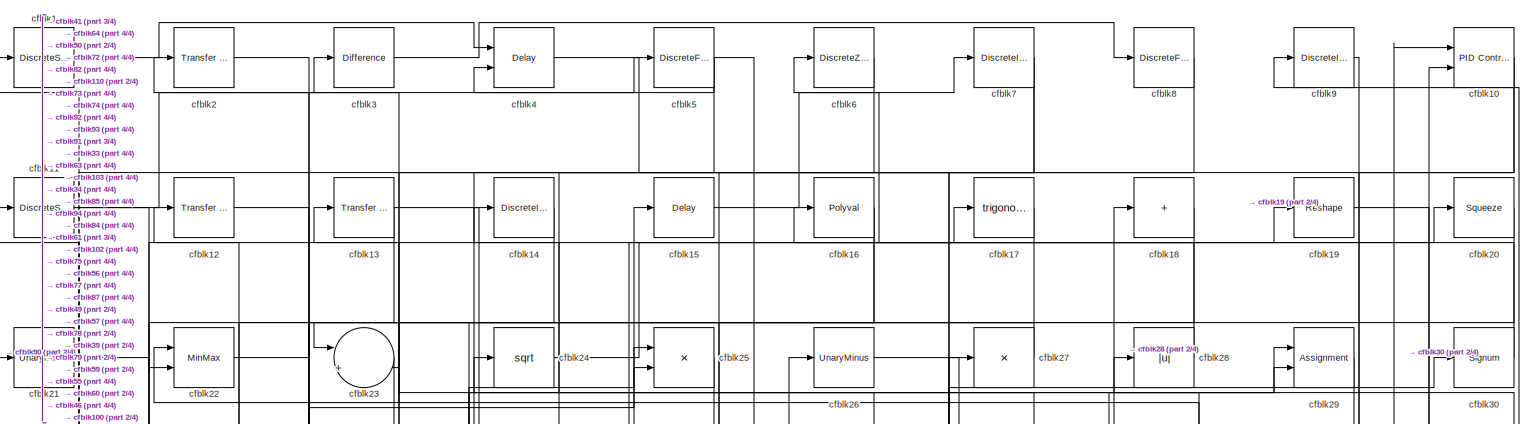
[diagram: root canvas - part 1/4, full width, top band]
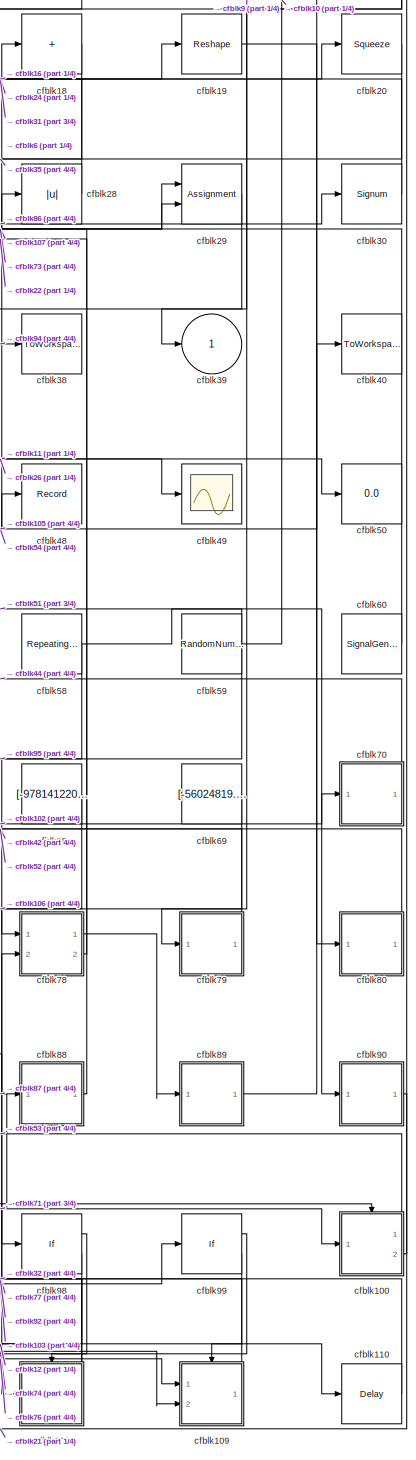
[diagram: root canvas - part 2/4, right side, full height]
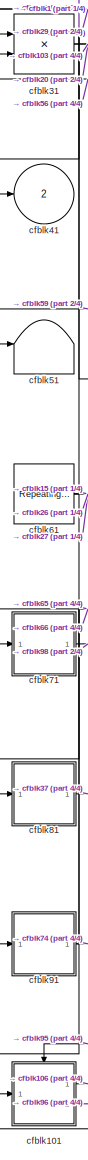
[diagram: root canvas - part 3/4, middle left region]
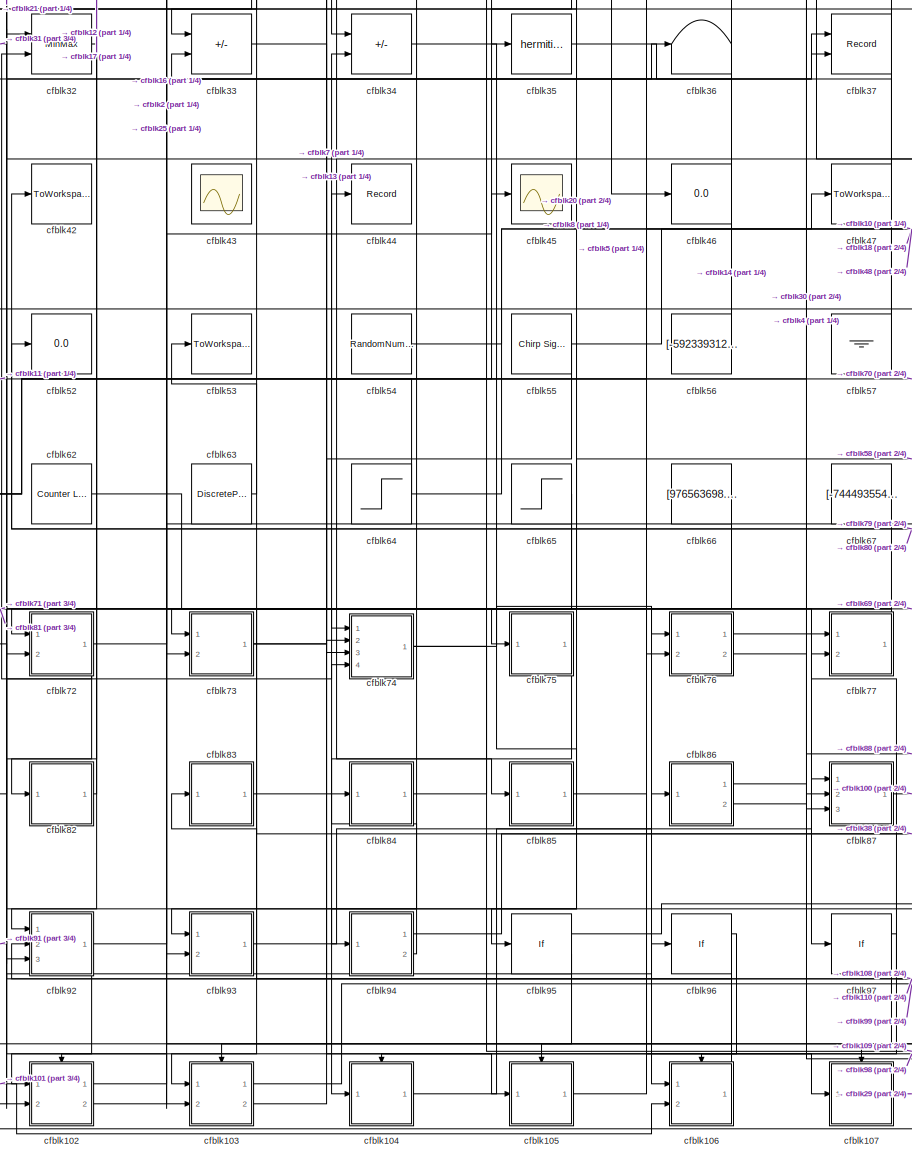
[diagram: root canvas - part 4/4, central region]
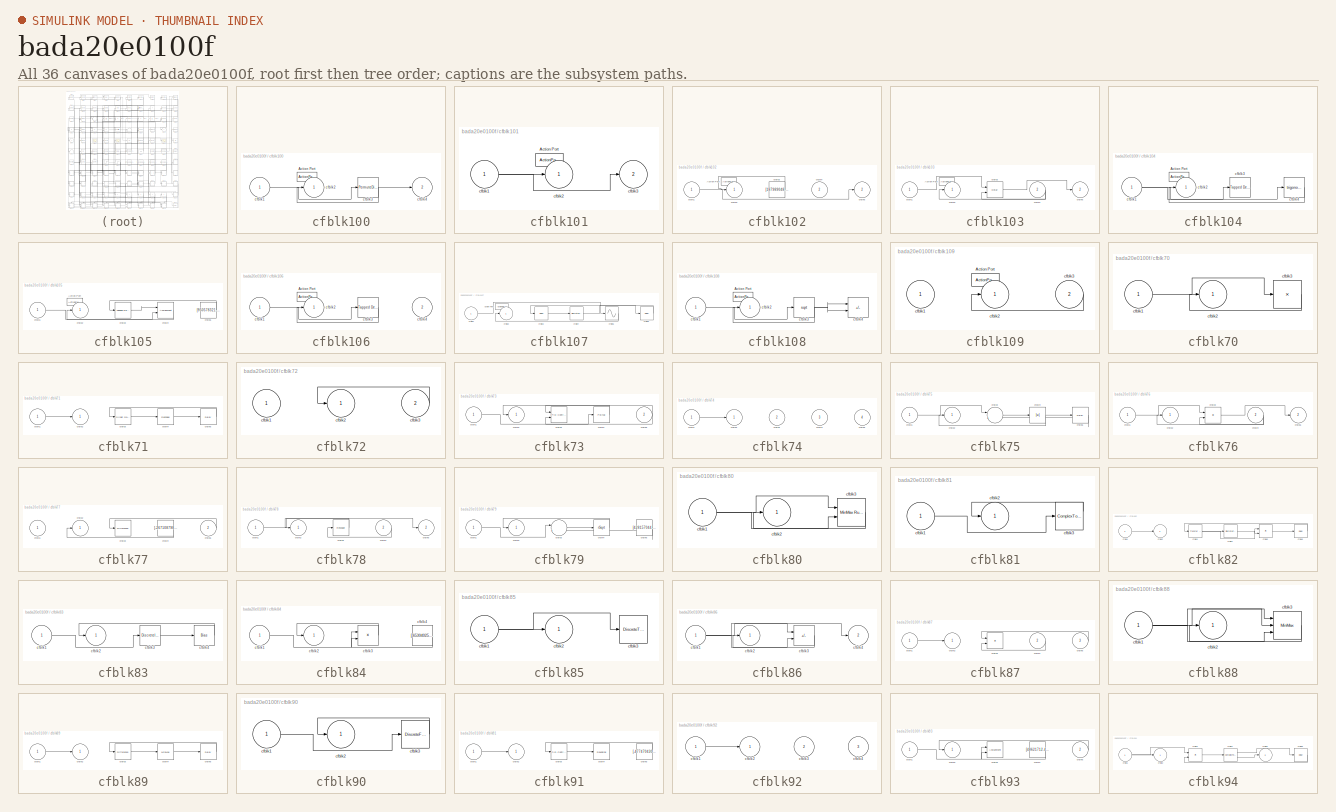
[diagram: thumbnail index - all 36 canvases of the model, root first then tree order]
MODEL slx_bada20e0100f
KIND model
CONFIG AbsTol = auto
CONFIG EnableMultiTasking = off
CONFIG FixedStep = auto
CONFIG MaxStep = auto
CONFIG MinStep = auto
CONFIG RelTol = 1e-3
CONFIG SampleTimeConstraint = Unconstrained
CONFIG SolverName = VariableStepAuto
CONFIG StartTime = 0.0
CONFIG StopTime = 10.0
BLOCK [DiscreteStateSpace] cfblk1
BLOCK [Reference] cfblk10  REF=slpidlib/PID Controller (2DOF)
  Ports = [2, 1]
  SourceBlock = slpidlib/PID Controller (2DOF)
  SourceProductBaseCode = SL
  SourceType = PID 2dof
BLOCK [SubSystem] cfblk100
  Ports = [1, 2, 0, 0, 0, 0, 0, 1]
  RequestExecContextInheritance = off
  TreatAsAtomicUnit = on
BLOCK [ActionPort] cfblk100/Action Port
  ActionPortLabel = if(u1 >= 0)
BLOCK [Inport] cfblk100/cfblk1
BLOCK [Outport] cfblk100/cfblk2
BLOCK [PermuteDimensions] cfblk100/cfblk3
BLOCK [Outport] cfblk100/cfblk4
  Port = 2
BLOCK [SubSystem] cfblk101
  Ports = [1, 2, 0, 0, 0, 0, 0, 1]
  RequestExecContextInheritance = off
  TreatAsAtomicUnit = on
BLOCK [ActionPort] cfblk101/Action Port
  ActionPortLabel = else
BLOCK [Inport] cfblk101/cfblk1
BLOCK [Outport] cfblk101/cfblk2
BLOCK [Outport] cfblk101/cfblk3
  Port = 2
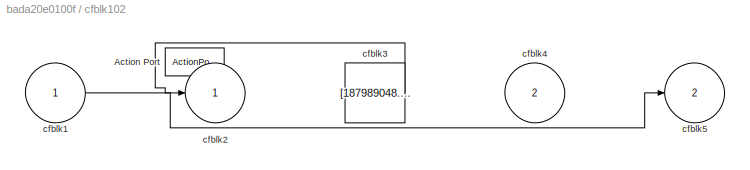
BLOCK [SubSystem] cfblk102
  Ports = [2, 2, 0, 0, 0, 0, 0, 1]
  RequestExecContextInheritance = off
  TreatAsAtomicUnit = on
BLOCK [ActionPort] cfblk102/Action Port
  ActionPortLabel = if(u1 >= 0)
BLOCK [Inport] cfblk102/cfblk1
BLOCK [Outport] cfblk102/cfblk2
BLOCK [Constant] cfblk102/cfblk3
  SampleTime = 1
  Value = [187989048.411279]
BLOCK [Inport] cfblk102/cfblk4
  Port = 2
BLOCK [Outport] cfblk102/cfblk5
  Port = 2
BLOCK [SubSystem] cfblk103
  Ports = [2, 2, 0, 0, 0, 0, 0, 1]
  RequestExecContextInheritance = off
  TreatAsAtomicUnit = on
BLOCK [ActionPort] cfblk103/Action Port
  ActionPortLabel = else
BLOCK [Inport] cfblk103/cfblk1
BLOCK [Outport] cfblk103/cfblk2
BLOCK [Delay] cfblk103/cfblk3
  DelayLengthSource = Input port
  InputPortMap = u0,p1
  Ports = [2, 1]
BLOCK [Inport] cfblk103/cfblk4
  Port = 2
BLOCK [Outport] cfblk103/cfblk5
  Port = 2
BLOCK [SubSystem] cfblk104
  Ports = [1, 1, 0, 0, 0, 0, 0, 1]
  RequestExecContextInheritance = off
  TreatAsAtomicUnit = on
BLOCK [ActionPort] cfblk104/Action Port
  ActionPortLabel = if(u1 >= 0)
BLOCK [Inport] cfblk104/cfblk1
BLOCK [Outport] cfblk104/cfblk2
BLOCK [Reference] cfblk104/cfblk3  REF=simulink/Discrete/Tapped Delay
  Ports = [1, 1]
  SourceBlock = simulink/Discrete/Tapped Delay
  SourceProductBaseCode = SL
  SourceType = Tapped Delay Line
BLOCK [Trigonometry] cfblk104/cfblk4
  Ports = [1, 1]
BLOCK [SubSystem] cfblk105
  Ports = [1, 1, 0, 0, 0, 0, 0, 1]
  RequestExecContextInheritance = off
  TreatAsAtomicUnit = on
BLOCK [ActionPort] cfblk105/Action Port
  ActionPortLabel = else
BLOCK [Inport] cfblk105/cfblk1
BLOCK [Outport] cfblk105/cfblk2
BLOCK [Reference] cfblk105/cfblk3  REF=simulink/Discrete/Tapped Delay
  Ports = [1, 1]
  SourceBlock = simulink/Discrete/Tapped Delay
  SourceProductBaseCode = SL
  SourceType = Tapped Delay Line
BLOCK [Assignment] cfblk105/cfblk4
  DiagnosticForDimensions = Warning
  IndexOptions = Index vector (dialog)
  Indices = 1
  OutputSizes = 1
  Ports = [2, 1]
BLOCK [Constant] cfblk105/cfblk5
  SampleTime = 1
  Value = [950578321.540777]
BLOCK [SubSystem] cfblk106
  Ports = [2, 1, 0, 0, 0, 0, 0, 1]
  RequestExecContextInheritance = off
  TreatAsAtomicUnit = on
BLOCK [ActionPort] cfblk106/Action Port
  ActionPortLabel = if(u1 >= 0)
BLOCK [Inport] cfblk106/cfblk1
BLOCK [Outport] cfblk106/cfblk2
BLOCK [Reference] cfblk106/cfblk3  REF=simulink/Discrete/Tapped Delay
  Ports = [1, 1]
  SourceBlock = simulink/Discrete/Tapped Delay
  SourceProductBaseCode = SL
  SourceType = Tapped Delay Line
BLOCK [Inport] cfblk106/cfblk4
  Port = 2
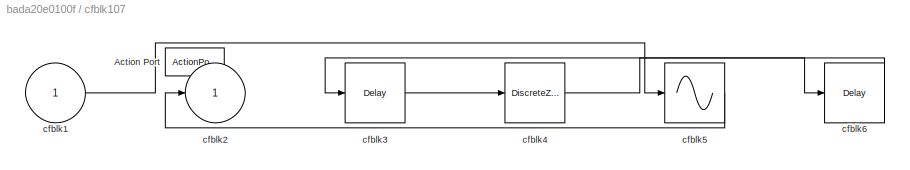
BLOCK [SubSystem] cfblk107
  Ports = [1, 1, 0, 0, 0, 0, 0, 1]
  RequestExecContextInheritance = off
  TreatAsAtomicUnit = on
BLOCK [ActionPort] cfblk107/Action Port
  ActionPortLabel = else
BLOCK [Inport] cfblk107/cfblk1
BLOCK [Outport] cfblk107/cfblk2
BLOCK [Delay] cfblk107/cfblk3
  InputPortMap = u0
  Ports = [1, 1]
BLOCK [DiscreteZeroPole] cfblk107/cfblk4
  Gain = 1
  Poles = [0 0.5]
  SampleTime = -1
BLOCK [Sin] cfblk107/cfblk5
  Ports = [1, 1]
  SampleTime = 0
  TimeSource = Use external signal
BLOCK [Delay] cfblk107/cfblk6
  InputPortMap = u0
  Ports = [1, 1]
BLOCK [SubSystem] cfblk108
  Ports = [1, 1, 0, 0, 0, 0, 0, 1]
  RequestExecContextInheritance = off
  TreatAsAtomicUnit = on
BLOCK [ActionPort] cfblk108/Action Port
  ActionPortLabel = if(u1 >= 0)
BLOCK [Inport] cfblk108/cfblk1
BLOCK [Outport] cfblk108/cfblk2
BLOCK [Sqrt] cfblk108/cfblk3
BLOCK [Sum] cfblk108/cfblk4
  IconShape = rectangular
  Inputs = +-
  Ports = [2, 1]
BLOCK [SubSystem] cfblk109
  Ports = [2, 1, 0, 0, 0, 0, 0, 1]
  RequestExecContextInheritance = off
  TreatAsAtomicUnit = on
BLOCK [ActionPort] cfblk109/Action Port
  ActionPortLabel = else
BLOCK [Inport] cfblk109/cfblk1
BLOCK [Outport] cfblk109/cfblk2
BLOCK [Inport] cfblk109/cfblk3
  Port = 2
BLOCK [DiscreteStateSpace] cfblk11
BLOCK [Delay] cfblk110
  InputPortMap = u0
  Ports = [1, 1]
  SampleTime = 1
BLOCK [Reference] cfblk12  REF=simulink/Discrete/Transfer Fcn
Lead or Lag
  Ports = [1, 1]
  SourceBlock = simulink/Discrete/Transfer Fcn\nLead or Lag
  SourceProductBaseCode = SL
  SourceType = Lead or Lag Compensator
BLOCK [Reference] cfblk13  REF=simulink/Discrete/Transfer Fcn
Lead or Lag
  Ports = [1, 1]
  SourceBlock = simulink/Discrete/Transfer Fcn\nLead or Lag
  SourceProductBaseCode = SL
  SourceType = Lead or Lag Compensator
BLOCK [DiscreteIntegrator] cfblk14
  ICPrevOutput = DiscIntNeverNeededParam
  ICPrevScaledInput = DiscIntNeverNeededParam
  InitialConditionSetting = Auto
  Ports = [1, 1]
BLOCK [Delay] cfblk15
  InputPortMap = u0
  Ports = [1, 1]
  SampleTime = 1
BLOCK [Polyval] cfblk16
  Coefs = [ +2.081618890e-019, -1.441693666e-014, +4.719686976e-010, -8.536869453e-006, +1.621573104e-001, -8.087801117e+001 ]
BLOCK [Trigonometry] cfblk17
  Ports = [1, 1]
BLOCK [Sum] cfblk18
  IconShape = rectangular
  Inputs = +
  Ports = [1, 1]
BLOCK [Reshape] cfblk19
  Ports = [1, 1]
BLOCK [Reference] cfblk2  REF=simulink/Discrete/Transfer Fcn
Real Zero
  Ports = [1, 1]
  SourceBlock = simulink/Discrete/Transfer Fcn\nReal Zero
  SourceProductBaseCode = SL
  SourceType = Transfer Fcn Real Zero
BLOCK [Squeeze] cfblk20
BLOCK [UnaryMinus] cfblk21
BLOCK [MinMax] cfblk22
  Function = max
  Inputs = 2
  Ports = [2, 1]
BLOCK [Sum] cfblk23
  Inputs = |++
  Ports = [2, 1]
BLOCK [Sqrt] cfblk24
BLOCK [Product] cfblk25
  Ports = [2, 1]
BLOCK [UnaryMinus] cfblk26
BLOCK [Product] cfblk27
  Inputs = *
  Ports = [1, 1]
BLOCK [Abs] cfblk28
  SaturateOnIntegerOverflow = off
BLOCK [Assignment] cfblk29
  DiagnosticForDimensions = Warning
  IndexOptions = Index vector (dialog)
  Indices = 1
  OutputSizes = 1
  Ports = [2, 1]
BLOCK [Reference] cfblk3  REF=simulink/Discrete/Difference
  Ports = [1, 1]
  SourceBlock = simulink/Discrete/Difference
  SourceProductBaseCode = SL
  SourceType = Difference
BLOCK [Signum] cfblk30
BLOCK [Product] cfblk31
  Inputs = **
  Ports = [2, 1]
BLOCK [MinMax] cfblk32
  Function = max
  Inputs = 2
  Ports = [2, 1]
BLOCK [Sum] cfblk33
  IconShape = rectangular
  Inputs = -+
  Ports = [2, 1]
BLOCK [Sum] cfblk34
  IconShape = rectangular
  Inputs = -+
  Ports = [2, 1]
BLOCK [Math] cfblk35
  Operator = hermitian
  Ports = [1, 1]
BLOCK [Terminator] cfblk36
BLOCK [Record] cfblk37
  CompatibilityTag = XY
  FileSettingsInternal = {"entries":[{"content":{"excelSettings":{"content":{},"type":"Streamout.ExcelSettings"}},"type":"Streamout.FileSettingStorage","uuid":"d36e2a6a-7d58-4cca-bbfa-2d4460a6e9a2"}],"packageUris":["http://schema.mathworks.com/mf0/streamout_blocks/R2020a"],"version":"1.0"}
  Layout = [1 1]
  Ports = [2]
  SignalsInternal = {"entries":[{"content":{"signals":[{"content":{"blockPath":["sampleModel226/cfblk37"],"channel":[],"dimensions":[1],"domain":"sampleModel226/cfblk37","lineColor":"#a2142f","plots":[1],"port":1,"sid":[""],"signalID":8845,"signalName":"cfblk81"},"type":"RecordBlkView.Signal","uuid":"4bfdb0e3-98e3-43bb-8b1d-080535746a11"},{"content":{"blockPath":["sampleModel226/cfblk37"],"channel":[],"dimensions":[1...<+385ch>
  VisualizationBindings = {"xyplotplugin":{"info":[{"series":[{"bindingParametersList":[{"parameter":"X-Axis","signalID":8845,"signalName":"cfblk81"},{"parameter":"Y-Axis","signalID":8849,"signalName":"cfblk35"}],"seriesID":61832}],"subplotID":1}]}}
BLOCK [ToWorkspace] cfblk38
  FixptAsFi = on
  MaxDataPoints = inf
  Ports = [1]
  SampleTime = -1
  SaveFormat = Timeseries
  VariableName = dikmpfj
BLOCK [Outport] cfblk39
BLOCK [Delay] cfblk4
  DelayLengthSource = Input port
  InputPortMap = u0,p1
  Ports = [2, 1]
  SampleTime = 1
BLOCK [ToWorkspace] cfblk40
  FixptAsFi = on
  MaxDataPoints = inf
  Ports = [1]
  SampleTime = -1
  SaveFormat = Timeseries
  VariableName = bzchjkb
BLOCK [Outport] cfblk41
  Port = 2
BLOCK [ToWorkspace] cfblk42
  FixptAsFi = on
  MaxDataPoints = inf
  Ports = [1]
  SampleTime = -1
  SaveFormat = Timeseries
  VariableName = vfofdyu
BLOCK [Scope] cfblk43
  Floating = on
  NumInputPorts = 1
  Ports = []
BLOCK [Record] cfblk44
  FileSettingsInternal = {"entries":[{"content":{"excelSettings":{"content":{},"type":"Streamout.ExcelSettings"}},"type":"Streamout.FileSettingStorage","uuid":"6da709ca-63db-447c-bae5-9ad803eba82c"}],"packageUris":["http://schema.mathworks.com/mf0/streamout_blocks/R2020a"],"version":"1.0"}
  Ports = [1]
  SignalsInternal = {"entries":[{"content":{"signals":[{"content":{"blockPath":["sampleModel226/cfblk44"],"channel":[],"dimensions":[1],"domain":"sampleModel226/cfblk44","lineColor":"#64d413","plots":[1],"port":1,"sid":[""],"signalID":8853,"signalName":"cfblk70"},"type":"RecordBlkView.Signal","uuid":"6e64be09-163b-49ba-8a46-496ddf1f160c"}]},"type":"RecordBlkView.InputSignals","uuid":"22720668-7b37-4b9a-8f54-b019708bc...<+97ch>
  VisualizationBindings = {"sparklinesplugin":{"info":[{"bindingParametersList":[],"subplotID":1}]}}
BLOCK [Scope] cfblk45
  Floating = off
  NumInputPorts = 1
  Ports = [1]
BLOCK [Display] cfblk46
  Decimation = 1
  Ports = [1]
BLOCK [ToWorkspace] cfblk47
  FixptAsFi = on
  MaxDataPoints = inf
  Ports = [1]
  SampleTime = -1
  SaveFormat = Timeseries
  VariableName = mtlpqra
BLOCK [Record] cfblk48
  FileSettingsInternal = {"entries":[{"content":{"excelSettings":{"content":{},"type":"Streamout.ExcelSettings"}},"type":"Streamout.FileSettingStorage","uuid":"889c16d3-eb07-45b4-991a-61aa03e04959"}],"packageUris":["http://schema.mathworks.com/mf0/streamout_blocks/R2020a"],"version":"1.0"}
  Ports = [1]
  SignalsInternal = {"entries":[{"content":{"signals":[{"content":{"blockPath":["sampleModel226/cfblk48"],"channel":[],"dimensions":[1],"domain":"sampleModel226/cfblk48","lineColor":"#ff13a6","plots":[1],"port":1,"sid":[""],"signalID":8857,"signalName":"cfblk105"},"type":"RecordBlkView.Signal","uuid":"d455fa8b-51d8-45b8-9a0a-93b8cc8b601d"}]},"type":"RecordBlkView.InputSignals","uuid":"c71b9389-408f-46ae-9f87-9ca061c3...<+98ch>
  VisualizationBindings = {"sparklinesplugin":{"info":[{"bindingParametersList":[],"subplotID":1}]}}
BLOCK [Scope] cfblk49
  Floating = off
  NumInputPorts = 1
  Ports = [1]
BLOCK [DiscreteFir] cfblk5
  InputPortMap = u0
  OutputPortMap = o0
  Ports = [1, 1]
  SampleTime = 1
BLOCK [Display] cfblk50
  Decimation = 1
  Ports = [1]
BLOCK [Terminator] cfblk51
BLOCK [Display] cfblk52
  Decimation = 1
  Ports = [1]
BLOCK [ToWorkspace] cfblk53
  FixptAsFi = on
  MaxDataPoints = inf
  Ports = [1]
  SampleTime = -1
  SaveFormat = Timeseries
  VariableName = knqiwia
BLOCK [RandomNumber] cfblk54
  Mean = [-4325.746459]
  SampleTime = 0.1
  Seed = [10241733.000000]
  Variance = [71427.847136]
BLOCK [Reference] cfblk55  REF=simulink/Sources/Chirp Signal
  Ports = [0, 1]
  SourceBlock = simulink/Sources/Chirp Signal
  SourceProductBaseCode = SL
  SourceType = chirp
BLOCK [Constant] cfblk56
  SampleTime = 1
  Value = [-592339312.005228]
BLOCK [Ground] cfblk57
BLOCK [Reference] cfblk58  REF=simulink/Sources/Repeating
Sequence
  Ports = [0, 1]
  SourceBlock = simulink/Sources/Repeating\nSequence
  SourceProductBaseCode = SL
  SourceType = Repeating table
BLOCK [RandomNumber] cfblk59
  Mean = [-93942.652973]
  SampleTime = 0.1
  Seed = [790619.000000]
  Variance = [96041.707284]
BLOCK [DiscreteZeroPole] cfblk6
  Gain = 1
  Poles = [0 0.5]
BLOCK [SignalGenerator] cfblk60
  Amplitude = [693207855.217041]
  Ports = [0, 1]
  Units = rad/sec
BLOCK [Reference] cfblk61  REF=simulink/Sources/Repeating
Sequence
  Ports = [0, 1]
  SourceBlock = simulink/Sources/Repeating\nSequence
  SourceProductBaseCode = SL
  SourceType = Repeating table
BLOCK [Reference] cfblk62  REF=simulink/Sources/Counter
Limited
  Ports = [0, 1]
  SourceBlock = simulink/Sources/Counter\nLimited
  SourceProductBaseCode = SL
  SourceType = Counter Limited
BLOCK [DiscretePulseGenerator] cfblk63
  Amplitude = [-918031499.996317]
  Period = [48545849.790406]
  PhaseDelay = [2.000000]
  Ports = [0, 1]
  PulseType = Time based
  PulseWidth = 5
BLOCK [Step] cfblk64
  After = [998963794.152262]
  Before = [-570561474.659156]
  SampleTime = 0
  Time = [49.000000]
BLOCK [Step] cfblk65
  After = [745987959.330450]
  Before = [357232661.862579]
  SampleTime = 0
  Time = [40.000000]
BLOCK [Constant] cfblk66
  SampleTime = 1
  Value = [976563698.586644]
BLOCK [Constant] cfblk67
  SampleTime = 1
  Value = [-744493554.030703]
BLOCK [Constant] cfblk68
  SampleTime = 1
  Value = [-978141220.427828]
BLOCK [Constant] cfblk69
  SampleTime = 1
  Value = [-56024819.354020]
BLOCK [DiscreteIntegrator] cfblk7
  ICPrevOutput = DiscIntNeverNeededParam
  ICPrevScaledInput = DiscIntNeverNeededParam
  InitialConditionSetting = Auto
  Ports = [1, 1]
BLOCK [SubSystem] cfblk70
  Ports = [1, 1]
  RequestExecContextInheritance = off
BLOCK [Inport] cfblk70/cfblk1
BLOCK [Outport] cfblk70/cfblk2
BLOCK [Product] cfblk70/cfblk3
  Inputs = *
  Ports = [1, 1]
BLOCK [SubSystem] cfblk71
  Ports = [1, 1]
  RequestExecContextInheritance = off
BLOCK [Inport] cfblk71/cfblk1
BLOCK [Outport] cfblk71/cfblk2
BLOCK [Reference] cfblk71/cfblk3  REF=simulink/Math
Operations/Slider
Gain
  Ports = [1, 1]
  SourceBlock = simulink/Math\nOperations/Slider\nGain
  SourceProductBaseCode = SL
  SourceType = Slider Gain
BLOCK [Reshape] cfblk71/cfblk4
  Ports = [1, 1]
BLOCK [Delay] cfblk71/cfblk5
  InputPortMap = u0
  Ports = [1, 1]
  SampleTime = 1
BLOCK [SubSystem] cfblk72
  Ports = [2, 1]
  RequestExecContextInheritance = off
BLOCK [Inport] cfblk72/cfblk1
BLOCK [Outport] cfblk72/cfblk2
BLOCK [Inport] cfblk72/cfblk3
  Port = 2
BLOCK [SubSystem] cfblk73
  Ports = [2, 1]
  RequestExecContextInheritance = off
BLOCK [Inport] cfblk73/cfblk1
BLOCK [Outport] cfblk73/cfblk2
BLOCK [Reference] cfblk73/cfblk3  REF=slpidlib/PID Controller (2DOF)
  Ports = [2, 1]
  SourceBlock = slpidlib/PID Controller (2DOF)
  SourceProductBaseCode = SL
  SourceType = PID 2dof
BLOCK [Polyval] cfblk73/cfblk4
  Coefs = [ +2.081618890e-019, -1.441693666e-014, +4.719686976e-010, -8.536869453e-006, +1.621573104e-001, -8.087801117e+001 ]
BLOCK [Inport] cfblk73/cfblk5
  Port = 2
BLOCK [SubSystem] cfblk74
  Ports = [4, 1]
  RequestExecContextInheritance = off
BLOCK [Inport] cfblk74/cfblk1
BLOCK [Outport] cfblk74/cfblk2
BLOCK [Inport] cfblk74/cfblk3
  Port = 2
BLOCK [Inport] cfblk74/cfblk4
  Port = 3
BLOCK [Inport] cfblk74/cfblk5
  Port = 4
BLOCK [SubSystem] cfblk75
  Ports = [1, 1]
  RequestExecContextInheritance = off
BLOCK [Inport] cfblk75/cfblk1
BLOCK [Outport] cfblk75/cfblk2
BLOCK [Sum] cfblk75/cfblk3
  Inputs = |++
  Ports = [2, 1]
BLOCK [Abs] cfblk75/cfblk4
  SaturateOnIntegerOverflow = off
BLOCK [Delay] cfblk75/cfblk5
  InputPortMap = u0
  Ports = [1, 1]
  SampleTime = 1
BLOCK [SubSystem] cfblk76
  Ports = [2, 2]
  RequestExecContextInheritance = off
BLOCK [Inport] cfblk76/cfblk1
BLOCK [Outport] cfblk76/cfblk2
BLOCK [Product] cfblk76/cfblk3
  Inputs = **
  Ports = [2, 1]
BLOCK [Inport] cfblk76/cfblk4
  Port = 2
BLOCK [Outport] cfblk76/cfblk5
  Port = 2
BLOCK [SubSystem] cfblk77
  Ports = [2, 1]
  RequestExecContextInheritance = off
BLOCK [Inport] cfblk77/cfblk1
BLOCK [Outport] cfblk77/cfblk2
BLOCK [Reference] cfblk77/cfblk3  REF=simulink/Discrete/Difference
  Ports = [1, 1]
  SourceBlock = simulink/Discrete/Difference
  SourceProductBaseCode = SL
  SourceType = Difference
BLOCK [Constant] cfblk77/cfblk4
  SampleTime = 1
  Value = [-267108798.148476]
BLOCK [Inport] cfblk77/cfblk5
  Port = 2
BLOCK [SubSystem] cfblk78
  Ports = [2, 2]
  RequestExecContextInheritance = off
BLOCK [Inport] cfblk78/cfblk1
BLOCK [Outport] cfblk78/cfblk2
BLOCK [Reshape] cfblk78/cfblk3
  Ports = [1, 1]
BLOCK [Inport] cfblk78/cfblk4
  Port = 2
BLOCK [Outport] cfblk78/cfblk5
  Port = 2
BLOCK [SubSystem] cfblk79
  Ports = [1, 1]
  RequestExecContextInheritance = off
BLOCK [Inport] cfblk79/cfblk1
BLOCK [Outport] cfblk79/cfblk2
BLOCK [Sum] cfblk79/cfblk3
  Inputs = |++
  Ports = [2, 1]
BLOCK [Sqrt] cfblk79/cfblk4
  AlgorithmType = Newton-Raphson
  Operator = rSqrt
BLOCK [Constant] cfblk79/cfblk5
  SampleTime = 1
  Value = [428157044.886283]
BLOCK [DiscreteFilter] cfblk8
  InputPortMap = u0
  Ports = [1, 1]
  SampleTime = 1
BLOCK [SubSystem] cfblk80
  Ports = [1, 1]
  RequestExecContextInheritance = off
BLOCK [Inport] cfblk80/cfblk1
BLOCK [Outport] cfblk80/cfblk2
BLOCK [Reference] cfblk80/cfblk3  REF=simulink/Math
Operations/MinMax
Running
Resettable
  Ports = [2, 1]
  SourceBlock = simulink/Math\nOperations/MinMax\nRunning\nResettable
  SourceProductBaseCode = SL
  SourceType = MinMax Running Resettable
BLOCK [SubSystem] cfblk81
  Ports = [1, 1]
  RequestExecContextInheritance = off
BLOCK [Inport] cfblk81/cfblk1
BLOCK [Outport] cfblk81/cfblk2
BLOCK [ComplexToMagnitudeAngle] cfblk81/cfblk3
  Ports = [1, 2]
BLOCK [SubSystem] cfblk82
  Ports = [1, 1]
  RequestExecContextInheritance = off
BLOCK [Inport] cfblk82/cfblk1
BLOCK [Outport] cfblk82/cfblk2
BLOCK [Reference] cfblk82/cfblk3  REF=simulink/Discrete/Transfer Fcn
Lead or Lag
  Ports = [1, 1]
  SourceBlock = simulink/Discrete/Transfer Fcn\nLead or Lag
  SourceProductBaseCode = SL
  SourceType = Lead or Lag Compensator
BLOCK [DiscreteFir] cfblk82/cfblk4
  InputPortMap = u0
  OutputPortMap = o0
  Ports = [1, 1]
  SampleTime = 1
BLOCK [Product] cfblk82/cfblk5
  Ports = [2, 1]
BLOCK [Delay] cfblk82/cfblk6
  InputPortMap = u0
  Ports = [1, 1]
  SampleTime = 1
BLOCK [SubSystem] cfblk83
  Ports = [1, 1]
  RequestExecContextInheritance = off
BLOCK [Inport] cfblk83/cfblk1
BLOCK [Outport] cfblk83/cfblk2
BLOCK [DiscreteIntegrator] cfblk83/cfblk3
  ICPrevOutput = DiscIntNeverNeededParam
  ICPrevScaledInput = DiscIntNeverNeededParam
  InitialConditionSetting = Auto
  Ports = [1, 1]
BLOCK [Bias] cfblk83/cfblk4
  Bias = [908485912.588016]
  SaturateOnIntegerOverflow = off
BLOCK [SubSystem] cfblk84
  Ports = [1, 1]
  RequestExecContextInheritance = off
BLOCK [Inport] cfblk84/cfblk1
BLOCK [Outport] cfblk84/cfblk2
BLOCK [Product] cfblk84/cfblk3
  Inputs = **
  Ports = [2, 1]
BLOCK [Constant] cfblk84/cfblk4
  SampleTime = 1
  Value = [-65304025.086890]
BLOCK [SubSystem] cfblk85
  Ports = [1, 1]
  RequestExecContextInheritance = off
BLOCK [Inport] cfblk85/cfblk1
BLOCK [Outport] cfblk85/cfblk2
BLOCK [DiscreteTransferFcn] cfblk85/cfblk3
  InputPortMap = u0
  Ports = [1, 1]
  SampleTime = 1
BLOCK [SubSystem] cfblk86
  Ports = [1, 2]
  RequestExecContextInheritance = off
BLOCK [Inport] cfblk86/cfblk1
BLOCK [Outport] cfblk86/cfblk2
BLOCK [Sum] cfblk86/cfblk3
  IconShape = rectangular
  Inputs = +-
  Ports = [2, 1]
BLOCK [Outport] cfblk86/cfblk4
  Port = 2
BLOCK [SubSystem] cfblk87
  Ports = [3, 1]
  RequestExecContextInheritance = off
BLOCK [Inport] cfblk87/cfblk1
BLOCK [Outport] cfblk87/cfblk2
BLOCK [Product] cfblk87/cfblk3
  Ports = [2, 1]
BLOCK [Inport] cfblk87/cfblk4
  Port = 2
BLOCK [Inport] cfblk87/cfblk5
  Port = 3
BLOCK [SubSystem] cfblk88
  Ports = [1, 1]
  RequestExecContextInheritance = off
BLOCK [Inport] cfblk88/cfblk1
BLOCK [Outport] cfblk88/cfblk2
BLOCK [MinMax] cfblk88/cfblk3
  Function = max
  Inputs = 3
  Ports = [3, 1]
BLOCK [SubSystem] cfblk89
  Ports = [1, 1]
  RequestExecContextInheritance = off
BLOCK [Inport] cfblk89/cfblk1
BLOCK [Outport] cfblk89/cfblk2
BLOCK [Reference] cfblk89/cfblk3  REF=simulink/Discrete/Difference
  Ports = [1, 1]
  SourceBlock = simulink/Discrete/Difference
  SourceProductBaseCode = SL
  SourceType = Difference
BLOCK [MinMax] cfblk89/cfblk4
  Function = max
  Ports = [1, 1]
BLOCK [Delay] cfblk89/cfblk5
  InputPortMap = u0
  Ports = [1, 1]
  SampleTime = 1
BLOCK [DiscreteIntegrator] cfblk9
  ICPrevOutput = DiscIntNeverNeededParam
  ICPrevScaledInput = DiscIntNeverNeededParam
  InitialConditionSetting = Auto
  Ports = [1, 1]
BLOCK [SubSystem] cfblk90
  Ports = [1, 1]
  RequestExecContextInheritance = off
BLOCK [Inport] cfblk90/cfblk1
BLOCK [Outport] cfblk90/cfblk2
BLOCK [DiscreteFir] cfblk90/cfblk3
  InputPortMap = u0
  OutputPortMap = o0
  Ports = [1, 1]
  SampleTime = 1
BLOCK [SubSystem] cfblk91
  Ports = [1, 1]
  RequestExecContextInheritance = off
BLOCK [Inport] cfblk91/cfblk1
BLOCK [Outport] cfblk91/cfblk2
BLOCK [Reference] cfblk91/cfblk3  REF=slpidlib/PID Controller
  Ports = [1, 1]
  SourceBlock = slpidlib/PID Controller
  SourceProductBaseCode = SL
  SourceType = PID 1dof
BLOCK [Rounding] cfblk91/cfblk4
BLOCK [Constant] cfblk91/cfblk5
  SampleTime = 1
  Value = [-477470430.677754]
BLOCK [SubSystem] cfblk92
  Ports = [3, 1]
  RequestExecContextInheritance = off
BLOCK [Inport] cfblk92/cfblk1
BLOCK [Outport] cfblk92/cfblk2
BLOCK [Inport] cfblk92/cfblk3
  Port = 2
BLOCK [Inport] cfblk92/cfblk4
  Port = 3
BLOCK [SubSystem] cfblk93
  Ports = [2, 1]
  RequestExecContextInheritance = off
BLOCK [Inport] cfblk93/cfblk1
BLOCK [Outport] cfblk93/cfblk2
BLOCK [Assignment] cfblk93/cfblk3
  DiagnosticForDimensions = Warning
  IndexOptions = Index vector (dialog)
  Indices = 1
  OutputSizes = 1
  Ports = [2, 1]
BLOCK [Constant] cfblk93/cfblk4
  SampleTime = 1
  Value = [48621712.495757]
BLOCK [Inport] cfblk93/cfblk5
  Port = 2
BLOCK [SubSystem] cfblk94
  Ports = [1, 2]
  RequestExecContextInheritance = off
BLOCK [Inport] cfblk94/cfblk1
BLOCK [Outport] cfblk94/cfblk2
BLOCK [Product] cfblk94/cfblk3
  Inputs = **
  Ports = [2, 1]
BLOCK [ComplexToMagnitudeAngle] cfblk94/cfblk4
  Ports = [1, 2]
BLOCK [Outport] cfblk94/cfblk5
  Port = 2
BLOCK [Delay] cfblk94/cfblk6
  InputPortMap = u0
  Ports = [1, 1]
  SampleTime = 1
BLOCK [If] cfblk95
  IfExpression = u1 >= 0
  Ports = [1, 2]
  SampleTime = 1
BLOCK [If] cfblk96
  IfExpression = u1 >= 0
  Ports = [1, 2]
  SampleTime = 1
BLOCK [If] cfblk97
  IfExpression = u1 >= 0
  Ports = [1, 2]
  SampleTime = 1
BLOCK [If] cfblk98
  IfExpression = u1 >= 0
  Ports = [1, 2]
  SampleTime = 1
BLOCK [If] cfblk99
  IfExpression = u1 >= 0
  Ports = [1, 2]
  SampleTime = 1
LINE cfblk100/cfblk1:1 -> cfblk100/cfblk3:1
NET cfblk100/cfblk3:1 -> cfblk100/cfblk2:1, cfblk100/cfblk4:1
LINE cfblk100:1 -> cfblk53:1
LINE cfblk100:2 -> cfblk9:1
NET cfblk101/cfblk1:1 -> cfblk101/cfblk2:1, cfblk101/cfblk3:1
LINE cfblk101:1 -> cfblk106:2
LINE cfblk101:2 -> cfblk96:1
LINE cfblk102/cfblk1:1 -> cfblk102/cfblk5:1
LINE cfblk102/cfblk3:1 -> cfblk102/cfblk2:1
LINE cfblk102:1 -> cfblk45:1
LINE cfblk102:2 -> cfblk70:1
LINE cfblk103/cfblk1:1 -> cfblk103/cfblk3:1
LINE cfblk103/cfblk3:1 -> cfblk103/cfblk5:1
NET cfblk103/cfblk4:1 -> cfblk103/cfblk2:1, cfblk103/cfblk3:2
LINE cfblk103:1 -> cfblk99:1
LINE cfblk103:2 -> cfblk25:1
NET cfblk104/cfblk1:1 -> cfblk104/cfblk3:1, cfblk104/cfblk4:1
LINE cfblk104/cfblk4:1 -> cfblk104/cfblk2:1
LINE cfblk104:1 -> cfblk86:1
LINE cfblk105/cfblk1:1 -> cfblk105/cfblk4:2
LINE cfblk105/cfblk3:1 -> cfblk105/cfblk4:1
LINE cfblk105/cfblk4:1 -> cfblk105/cfblk2:1
LINE cfblk105/cfblk5:1 -> cfblk105/cfblk3:1
LINE cfblk105:1 -> cfblk48:1
LINE cfblk106/cfblk1:1 -> cfblk106/cfblk3:1
LINE cfblk106/cfblk3:1 -> cfblk106/cfblk2:1
LINE cfblk106:1 -> cfblk83:1
LINE cfblk107/cfblk1:1 -> cfblk107/cfblk5:1
LINE cfblk107/cfblk3:1 -> cfblk107/cfblk4:1
LINE cfblk107/cfblk4:1 -> cfblk107/cfblk6:1
LINE cfblk107/cfblk5:1 -> cfblk107/cfblk2:1
LINE cfblk107/cfblk6:1 -> cfblk107/cfblk3:1
LINE cfblk107:1 -> cfblk29:1
LINE cfblk108/cfblk1:1 -> cfblk108/cfblk3:1
NET cfblk108/cfblk3:1 -> cfblk108/cfblk2:1, cfblk108/cfblk4:1, cfblk108/cfblk4:2
NET cfblk108:1 -> cfblk77:2, cfblk92:2
LINE cfblk109/cfblk3:1 -> cfblk109/cfblk2:1
LINE cfblk109:1 -> cfblk78:2
NET cfblk10:1 -> cfblk79:1, cfblk87:3
LINE cfblk110:1 -> cfblk32:1
NET cfblk11:1 -> cfblk3:1, cfblk50:1
LINE cfblk12:1 -> cfblk110:1
NET cfblk13:1 -> cfblk22:2, cfblk85:1
LINE cfblk14:1 -> cfblk23:2
LINE cfblk15:1 -> cfblk7:1
NET cfblk16:1 -> cfblk73:2, cfblk93:2
LINE cfblk17:1 -> cfblk92:1
LINE cfblk18:1 -> cfblk74:3
LINE cfblk19:1 -> cfblk80:1
LINE cfblk1:1 -> cfblk4:1
LINE cfblk20:1 -> cfblk35:1
LINE cfblk21:1 -> cfblk72:2
LINE cfblk22:1 -> cfblk5:1
LINE cfblk23:1 -> cfblk91:1
LINE cfblk24:1 -> cfblk19:1
LINE cfblk25:1 -> cfblk102:2
LINE cfblk26:1 -> cfblk49:1
LINE cfblk27:1 -> cfblk23:1
LINE cfblk28:1 -> cfblk16:1
LINE cfblk29:1 -> cfblk31:2
LINE cfblk2:1 -> cfblk74:1
LINE cfblk30:1 -> cfblk6:1
NET cfblk31:1 -> cfblk103:2, cfblk20:1
LINE cfblk32:1 -> cfblk82:1
LINE cfblk33:1 -> cfblk76:2
LINE cfblk34:1 -> cfblk93:1
LINE cfblk35:1 -> cfblk37:2
LINE cfblk3:1 -> cfblk8:1
LINE cfblk4:1 -> cfblk77:1
LINE cfblk54:1 -> cfblk18:1
NET cfblk55:1 -> cfblk10:2, cfblk74:2
NET cfblk56:1 -> cfblk14:1, cfblk31:1
NET cfblk57:1 -> cfblk2:1, cfblk33:2
NET cfblk58:1 -> cfblk90:1, cfblk95:1
NET cfblk59:1 -> cfblk108:1, cfblk10:1, cfblk51:1
NET cfblk5:1 -> cfblk46:1, cfblk4:2, cfblk94:1
LINE cfblk60:1 -> cfblk24:1
NET cfblk61:1 -> cfblk15:1, cfblk26:1, cfblk27:1
LINE cfblk62:1 -> cfblk97:1
LINE cfblk63:1 -> cfblk13:1
NET cfblk64:1 -> cfblk11:1, cfblk47:1
NET cfblk65:1 -> cfblk71:1, cfblk73:1, cfblk81:1
LINE cfblk66:1 -> cfblk101:1
LINE cfblk67:1 -> cfblk103:1
LINE cfblk68:1 -> cfblk78:1
LINE cfblk69:1 -> cfblk106:1
LINE cfblk6:1 -> cfblk41:1
LINE cfblk70/cfblk1:1 -> cfblk70/cfblk3:1
LINE cfblk70/cfblk3:1 -> cfblk70/cfblk2:1
LINE cfblk70:1 -> cfblk44:1
LINE cfblk71/cfblk1:1 -> cfblk71/cfblk2:1
LINE cfblk71/cfblk3:1 -> cfblk71/cfblk4:1
LINE cfblk71/cfblk4:1 -> cfblk71/cfblk5:1
LINE cfblk71/cfblk5:1 -> cfblk71/cfblk3:1
LINE cfblk71:1 -> cfblk98:1
LINE cfblk72/cfblk3:1 -> cfblk72/cfblk2:1
NET cfblk72:1 -> cfblk32:2, cfblk36:1, cfblk92:3
LINE cfblk73/cfblk1:1 -> cfblk73/cfblk4:1
LINE cfblk73/cfblk4:1 -> cfblk73/cfblk2:1
NET cfblk73/cfblk5:1 -> cfblk73/cfblk3:1, cfblk73/cfblk3:2
NET cfblk73:1 -> cfblk105:1, cfblk29:2
LINE cfblk74/cfblk1:1 -> cfblk74/cfblk2:1
NET cfblk74:1 -> cfblk109:2, cfblk76:1
LINE cfblk75/cfblk1:1 -> cfblk75/cfblk3:1
LINE cfblk75/cfblk3:1 -> cfblk75/cfblk4:1
NET cfblk75/cfblk4:1 -> cfblk75/cfblk2:1, cfblk75/cfblk5:1
LINE cfblk75/cfblk5:1 -> cfblk75/cfblk3:2
LINE cfblk75:1 -> cfblk104:1
LINE cfblk76/cfblk1:1 -> cfblk76/cfblk3:1
LINE cfblk76/cfblk3:1 -> cfblk76/cfblk5:1
NET cfblk76/cfblk4:1 -> cfblk76/cfblk2:1, cfblk76/cfblk3:2
LINE cfblk76:1 -> cfblk109:1
LINE cfblk76:2 -> cfblk88:1
LINE cfblk77/cfblk4:1 -> cfblk77/cfblk2:1
LINE cfblk77/cfblk5:1 -> cfblk77/cfblk3:1
LINE cfblk77:1 -> cfblk72:1
LINE cfblk78/cfblk1:1 -> cfblk78/cfblk5:1
LINE cfblk78/cfblk3:1 -> cfblk78/cfblk2:1
LINE cfblk78/cfblk4:1 -> cfblk78/cfblk3:1
LINE cfblk78:1 -> cfblk89:1
LINE cfblk78:2 -> cfblk22:1
LINE cfblk79/cfblk1:1 -> cfblk79/cfblk3:1
LINE cfblk79/cfblk3:1 -> cfblk79/cfblk4:1
LINE cfblk79/cfblk4:1 -> cfblk79/cfblk2:1
LINE cfblk79/cfblk5:1 -> cfblk79/cfblk3:2
LINE cfblk79:1 -> cfblk52:1
NET cfblk7:1 -> cfblk33:1, cfblk34:1
NET cfblk80/cfblk1:1 -> cfblk80/cfblk3:1, cfblk80/cfblk3:2
LINE cfblk80/cfblk3:1 -> cfblk80/cfblk2:1
LINE cfblk80:1 -> cfblk42:1
LINE cfblk81/cfblk1:1 -> cfblk81/cfblk3:1
LINE cfblk81/cfblk3:1 -> cfblk81/cfblk2:1
LINE cfblk81:1 -> cfblk37:1
LINE cfblk82/cfblk1:1 -> cfblk82/cfblk2:1
NET cfblk82/cfblk3:1 -> cfblk82/cfblk4:1, cfblk82/cfblk5:1
LINE cfblk82/cfblk4:1 -> cfblk82/cfblk5:2
LINE cfblk82/cfblk5:1 -> cfblk82/cfblk6:1
LINE cfblk82/cfblk6:1 -> cfblk82/cfblk3:1
LINE cfblk82:1 -> cfblk12:1
LINE cfblk83/cfblk1:1 -> cfblk83/cfblk3:1
LINE cfblk83/cfblk3:1 -> cfblk83/cfblk4:1
LINE cfblk83/cfblk4:1 -> cfblk83/cfblk2:1
LINE cfblk83:1 -> cfblk34:2
LINE cfblk84/cfblk1:1 -> cfblk84/cfblk3:1
LINE cfblk84/cfblk3:1 -> cfblk84/cfblk2:1
LINE cfblk84/cfblk4:1 -> cfblk84/cfblk3:2
LINE cfblk84:1 -> cfblk17:1
NET cfblk85/cfblk1:1 -> cfblk85/cfblk2:1, cfblk85/cfblk3:1
LINE cfblk85:1 -> cfblk107:1
NET cfblk86/cfblk1:1 -> cfblk86/cfblk3:1, cfblk86/cfblk3:2, cfblk86/cfblk4:1
LINE cfblk86/cfblk3:1 -> cfblk86/cfblk2:1
LINE cfblk86:1 -> cfblk87:2
LINE cfblk86:2 -> cfblk30:1
LINE cfblk87/cfblk1:1 -> cfblk87/cfblk2:1
LINE cfblk87/cfblk4:1 -> cfblk87/cfblk3:2
LINE cfblk87/cfblk5:1 -> cfblk87/cfblk3:1
LINE cfblk87:1 -> cfblk100:1
NET cfblk88/cfblk1:1 -> cfblk88/cfblk3:1, cfblk88/cfblk3:2, cfblk88/cfblk3:3
LINE cfblk88/cfblk3:1 -> cfblk88/cfblk2:1
LINE cfblk88:1 -> cfblk28:1
LINE cfblk89/cfblk1:1 -> cfblk89/cfblk2:1
LINE cfblk89/cfblk3:1 -> cfblk89/cfblk4:1
LINE cfblk89/cfblk4:1 -> cfblk89/cfblk5:1
LINE cfblk89/cfblk5:1 -> cfblk89/cfblk3:1
LINE cfblk89:1 -> cfblk40:1
LINE cfblk8:1 -> cfblk75:1
LINE cfblk90/cfblk1:1 -> cfblk90/cfblk3:1
LINE cfblk90/cfblk3:1 -> cfblk90/cfblk2:1
LINE cfblk90:1 -> cfblk21:1
LINE cfblk91/cfblk1:1 -> cfblk91/cfblk2:1
LINE cfblk91/cfblk3:1 -> cfblk91/cfblk4:1
LINE cfblk91/cfblk5:1 -> cfblk91/cfblk3:1
NET cfblk91:1 -> cfblk1:1, cfblk74:4
LINE cfblk92/cfblk1:1 -> cfblk92/cfblk2:1
NET cfblk92:1 -> cfblk102:1, cfblk25:2
LINE cfblk93/cfblk1:1 -> cfblk93/cfblk3:1
LINE cfblk93/cfblk4:1 -> cfblk93/cfblk3:2
LINE cfblk93/cfblk5:1 -> cfblk93/cfblk2:1
LINE cfblk93:1 -> cfblk87:1
NET cfblk94/cfblk1:1 -> cfblk94/cfblk2:1, cfblk94/cfblk3:1
LINE cfblk94/cfblk3:1 -> cfblk94/cfblk4:1
LINE cfblk94/cfblk4:1 -> cfblk94/cfblk6:1
LINE cfblk94/cfblk4:2 -> cfblk94/cfblk5:1
LINE cfblk94/cfblk6:1 -> cfblk94/cfblk3:2
LINE cfblk94:1 -> cfblk38:1
LINE cfblk94:2 -> cfblk84:1
LINE cfblk95:1 -> cfblk100:ifaction
LINE cfblk95:2 -> cfblk101:ifaction
LINE cfblk96:1 -> cfblk102:ifaction
LINE cfblk96:2 -> cfblk103:ifaction
LINE cfblk97:1 -> cfblk104:ifaction
LINE cfblk97:2 -> cfblk105:ifaction
LINE cfblk98:1 -> cfblk106:ifaction
LINE cfblk98:2 -> cfblk107:ifaction
LINE cfblk99:1 -> cfblk108:ifaction
LINE cfblk99:2 -> cfblk109:ifaction
LINE cfblk9:1 -> cfblk39:1
note: NET lines group one-source signal fan-out (src -> all destinations, sorted); 1:1 wires keep LINE
